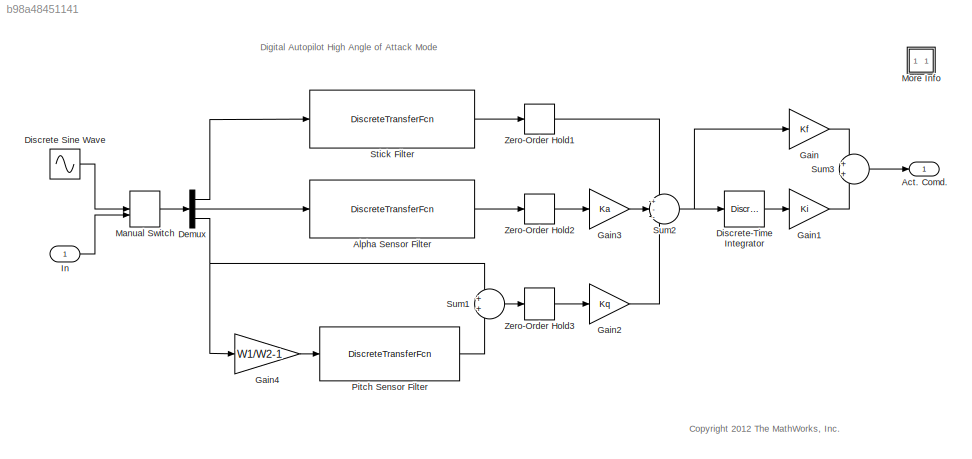
MODEL slx_b98a48451141
KIND model
CONFIG AbsTol = auto
CONFIG EnableMultiTasking = off
CONFIG FixedStep = auto
CONFIG MaxStep = auto
CONFIG MinStep = auto
CONFIG PreLoadFcn = load slexAircraftPitchControlData.mat
CONFIG RelTol = 1e-3
CONFIG SampleTimeConstraint = Unconstrained
CONFIG SolverName = FixedStepDiscrete
CONFIG StartTime = 0.0
CONFIG StopTime = 10.0
BLOCK [Outport] Act. Comd.
  InitialOutput = 0
  VectorParamsAs1DForOutWhenUnconnected = off
BLOCK [DiscreteTransferFcn] Alpha Sensor Filter
  Denominator = [1 -exp(-deltat1/Tal)]
  InputPortMap = u0
  Numerator = [1-exp(-deltat1/Tal)]
  Ports = [1, 1]
  SampleTime = deltat1
BLOCK [Demux] Demux
  DisplayOption = none
  Outputs = 3
  Ports = [1, 3]
BLOCK [Sin] Discrete Sine Wave
  Frequency = [1 2 3]
  NameLocation = top
  Ports = [0, 1]
  SampleTime = deltat1
BLOCK [DiscreteIntegrator] Discrete-Time Integrator
  ICPrevOutput = DiscIntNeverNeededParam
  ICPrevScaledInput = DiscIntNeverNeededParam
  Ports = [1, 1]
  SampleTime = deltat
BLOCK [Gain] Gain
  Gain = Kf
  OutDataTypeStr = Inherit: Same as input
  ParamDataTypeStr = Inherit: Same as input
  SaturateOnIntegerOverflow = on
BLOCK [Gain] Gain1
  Gain = Ki
  OutDataTypeStr = Inherit: Same as input
  ParamDataTypeStr = Inherit: Same as input
  SaturateOnIntegerOverflow = on
BLOCK [Gain] Gain2
  Gain = Kq
  NameLocation = top
  OutDataTypeStr = Inherit: Same as input
  ParamDataTypeStr = Inherit: Same as input
  SaturateOnIntegerOverflow = on
BLOCK [Gain] Gain3
  Gain = Ka
  NameLocation = top
  OutDataTypeStr = Inherit: Same as input
  ParamDataTypeStr = Inherit: Same as input
  SaturateOnIntegerOverflow = on
BLOCK [Gain] Gain4
  Gain = W1/W2-1
  NameLocation = top
  OutDataTypeStr = Inherit: Same as input
  ParamDataTypeStr = Inherit: Same as input
  SaturateOnIntegerOverflow = on
BLOCK [Inport] In
BLOCK [ManualSwitch] Manual Switch
BLOCK [SubSystem] More Info
  OpenFcn = showExample('simulink_aerospace/DesigningAHighAngleOfAttackPitchModeControlExample')
  Ports = []
  RequestExecContextInheritance = off
BLOCK [DiscreteTransferFcn] Pitch Sensor Filter
  Denominator = [1 -exp(-W2*deltat1)]
  InputPortMap = u0
  Numerator = [1-exp(-W2*deltat1)]
  Ports = [1, 1]
  SampleTime = deltat1
BLOCK [DiscreteTransferFcn] Stick Filter
  Denominator = [1 -exp(-deltat1/Ts)]
  InputPortMap = u0
  Numerator = [1-exp(-deltat1/Ts)]
  Ports = [1, 1]
  SampleTime = deltat1
BLOCK [Sum] Sum1
  InputSameDT = on
  Inputs = 2
  OutDataTypeStr = Inherit: Same as first input
  Ports = [2, 1]
  SaturateOnIntegerOverflow = on
BLOCK [Sum] Sum2
  InputSameDT = on
  Inputs = +--
  OutDataTypeStr = Inherit: Same as first input
  Ports = [3, 1]
  SaturateOnIntegerOverflow = on
BLOCK [Sum] Sum3
  InputSameDT = on
  Inputs = 2
  OutDataTypeStr = Inherit: Same as first input
  Ports = [2, 1]
  SaturateOnIntegerOverflow = on
BLOCK [ZeroOrderHold] Zero-Order Hold1
  SampleTime = deltat
BLOCK [ZeroOrderHold] Zero-Order Hold2
  SampleTime = deltat
BLOCK [ZeroOrderHold] Zero-Order Hold3
  SampleTime = deltat
ANNOTATION (root): <copyright redacted>
ANNOTATION (root): Digital Autopilot High Angle of Attack Mode
LINE Alpha Sensor Filter:1 -> Zero-Order Hold2:1
LINE Demux:1 -> Stick Filter:1
LINE Demux:2 -> Alpha Sensor Filter:1
NET Demux:3 -> Gain4:1, Sum1:1
LINE Discrete Sine Wave:1 -> Manual Switch:1
LINE Discrete-Time Integrator:1 -> Gain1:1
LINE Gain1:1 -> Sum3:2
LINE Gain2:1 -> Sum2:3
LINE Gain3:1 -> Sum2:2
LINE Gain4:1 -> Pitch Sensor Filter:1
LINE Gain:1 -> Sum3:1
LINE In:1 -> Manual Switch:2
LINE Manual Switch:1 -> Demux:1
LINE Pitch Sensor Filter:1 -> Sum1:2
LINE Stick Filter:1 -> Zero-Order Hold1:1
LINE Sum1:1 -> Zero-Order Hold3:1
NET Sum2:1 -> Discrete-Time Integrator:1, Gain:1
LINE Sum3:1 -> Act. Comd.:1
LINE Zero-Order Hold1:1 -> Sum2:1
LINE Zero-Order Hold2:1 -> Gain3:1
LINE Zero-Order Hold3:1 -> Gain2:1
note: NET lines group one-source signal fan-out (src -> all destinations, sorted); 1:1 wires keep LINE
